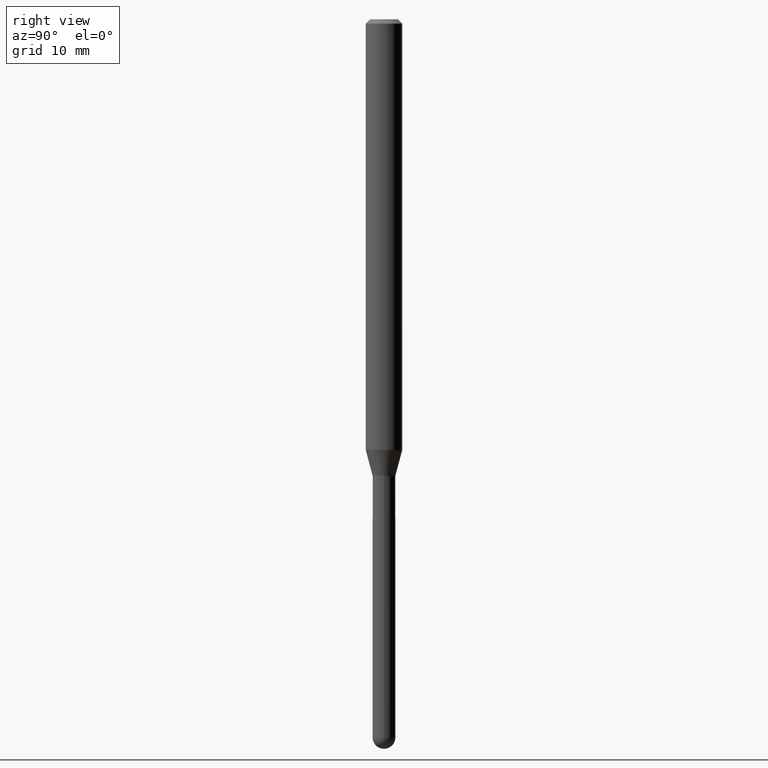
[diagram: clean part render]
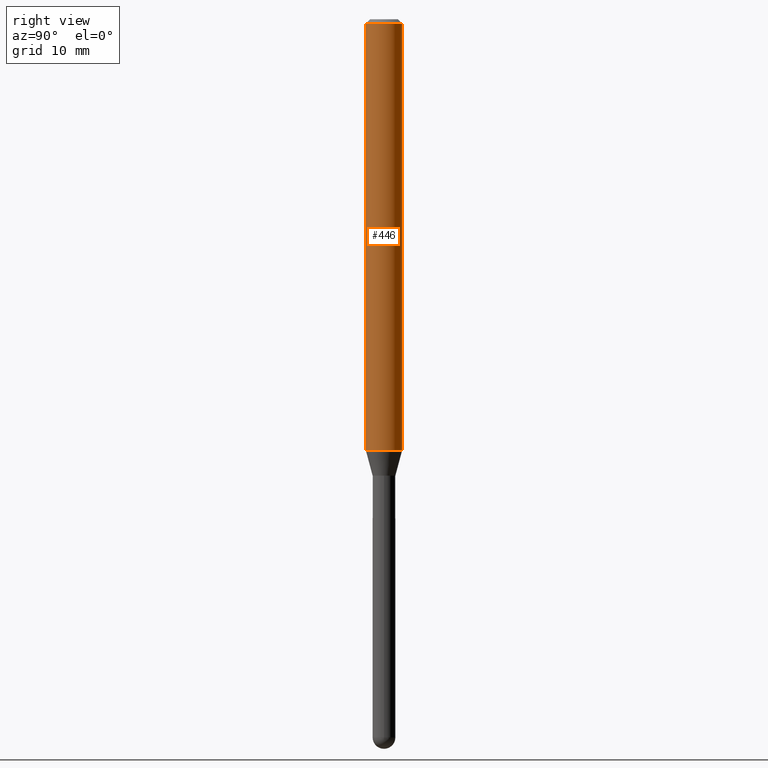
[diagram: same view with one face highlighted and labeled with its STEP entity id]
A machine part, right view. The second image highlights one B-rep face of the part: STEP entity #446.
In plain terms, the highlighted cylindrical surface (edge-blend (fillet) strip) has radius 1.5875 mm, axis along (-0, 0, 1).
Its self-contained STEP definition (entity closure, byte-faithful):
#16 = FACE_OUTER_BOUND ( 'NONE', #375, .T. ) ;
#17 = VERTEX_POINT ( 'NONE', #283 ) ;
#40 = ORIENTED_EDGE ( 'NONE', *, *, #217, .T. ) ;
#53 = ORIENTED_EDGE ( 'NONE', *, *, #360, .T. ) ;
#56 = AXIS2_PLACEMENT_3D ( 'NONE', #499, #310, #80 ) ;
#62 = VERTEX_POINT ( 'NONE', #261 ) ;
#70 = CARTESIAN_POINT ( 'NONE',  ( 4.440892098500625669E-16, 0.06250000000000000000, -2.182143493832702015E-16 ) ) ;
#80 = DIRECTION ( 'NONE',  ( -6.982962677686265922E-15, -1.000000000000000000, 3.483106191921935554E-15 ) ) ;
#100 = CARTESIAN_POINT ( 'NONE',  ( 4.440892098500983121E-16, 0.06249999999999480971, -1.476296806022133312 ) ) ;
#104 = VERTEX_POINT ( 'NONE', #100 ) ;
#107 = CARTESIAN_POINT ( 'NONE',  ( 3.610291135158322119E-29, -5.154386352363512854E-15, -1.476296806022132868 ) ) ;
#112 = DIRECTION ( 'NONE',  ( -2.445504942116765828E-29, 3.491429590132323224E-15, 1.000000000000000000 ) ) ;
#122 = DIRECTION ( 'NONE',  ( -6.982962677686265922E-15, -1.000000000000000000, 3.491429590132323224E-15 ) ) ;
#157 = LINE ( 'NONE', #473, #449 ) ;
#164 = VECTOR ( 'NONE', #337, 39.37007874015748143 ) ;
#217 = EDGE_CURVE ( 'NONE', #104, #62, #307, .T. ) ;
#247 = AXIS2_PLACEMENT_3D ( 'NONE', #107, #267, #378 ) ;
#261 = CARTESIAN_POINT ( 'NONE',  ( 4.440892098500989038E-16, 0.06249999999999995143, -0.01500000000000028394 ) ) ;
#267 = DIRECTION ( 'NONE',  ( -2.445504942116765828E-29, 3.491429590132323224E-15, 1.000000000000000000 ) ) ;
#274 = ORIENTED_EDGE ( 'NONE', *, *, #296, .F. ) ;
#278 = VERTEX_POINT ( 'NONE', #367 ) ;
#283 = CARTESIAN_POINT ( 'NONE',  ( -4.364351673553557762E-16, -0.06250000000000519029, -1.476296806022132646 ) ) ;
#293 = EDGE_CURVE ( 'NONE', #17, #278, #157, .T. ) ;
#294 = CIRCLE ( 'NONE', #56, 0.06250000000000000000 ) ;
#296 = EDGE_CURVE ( 'NONE', #278, #62, #294, .T. ) ;
#298 = CYLINDRICAL_SURFACE ( 'NONE', #459, 0.06250000000000000000 ) ;
#307 = LINE ( 'NONE', #70, #164 ) ;
#310 = DIRECTION ( 'NONE',  ( -2.445504942116765828E-29, 3.491429590132323224E-15, 1.000000000000000000 ) ) ;
#337 = DIRECTION ( 'NONE',  ( -2.445504942116766108E-29, 3.491429590132322830E-15, 1.000000000000000000 ) ) ;
#360 = EDGE_CURVE ( 'NONE', #17, #104, #389, .T. ) ;
#367 = CARTESIAN_POINT ( 'NONE',  ( -4.364351673553912750E-16, -0.06250000000000005551, -0.01499999999999984852 ) ) ;
#375 = EDGE_LOOP ( 'NONE', ( #53, #40, #274, #470 ) ) ;
#378 = DIRECTION ( 'NONE',  ( -6.982962677686265922E-15, -1.000000000000000000, 4.370956789862821150E-15 ) ) ;
#389 = CIRCLE ( 'NONE', #247, 0.06250000000000000000 ) ;
#397 = CARTESIAN_POINT ( 'NONE',  ( 0.000000000000000000, 0.000000000000000000, 0.000000000000000000 ) ) ;
#446 = ADVANCED_FACE ( 'NONE', ( #16 ), #298, .T. ) ;
#449 = VECTOR ( 'NONE', #507, 39.37007874015748143 ) ;
#459 = AXIS2_PLACEMENT_3D ( 'NONE', #397, #112, #122 ) ;
#470 = ORIENTED_EDGE ( 'NONE', *, *, #293, .F. ) ;
#473 = CARTESIAN_POINT ( 'NONE',  ( -4.364351673553916201E-16, -0.06250000000000000000, 2.182143493832702015E-16 ) ) ;
#499 = CARTESIAN_POINT ( 'NONE',  ( 3.668257413175165207E-31, -5.237144385198507171E-17, -0.01500000000000006710 ) ) ;
#507 = DIRECTION ( 'NONE',  ( -2.445504942116766108E-29, 3.491429590132322830E-15, 1.000000000000000000 ) ) ;